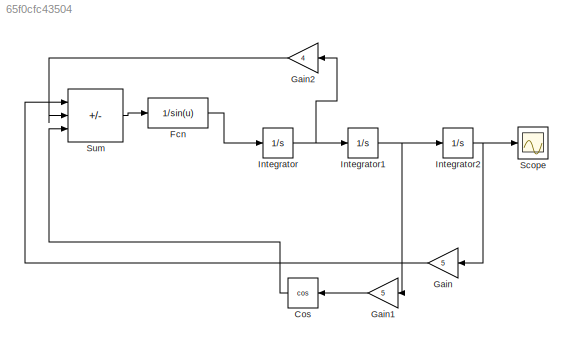
MODEL slx_65f0cfc43504
KIND model
CONFIG AbsTol = auto
CONFIG EnableMultiTasking = off
CONFIG FixedStep = auto
CONFIG MaxStep = auto
CONFIG MinStep = auto
CONFIG RelTol = 1e-3
CONFIG SampleTimeConstraint = Unconstrained
CONFIG SolverName = VariableStepAuto
CONFIG StartTime = 0.0
CONFIG StopTime = 10.0
BLOCK [Trigonometry] Cos
  Operator = cos
BLOCK [Fcn] Fcn
  Expr = 1/sin(u)
BLOCK [Gain] Gain
  Gain = 5
BLOCK [Gain] Gain1
  Gain = 5
BLOCK [Gain] Gain2
  Gain = 4
BLOCK [Integrator] Integrator
BLOCK [Integrator] Integrator1
BLOCK [Integrator] Integrator2
BLOCK [Scope] Scope
  Floating = off
  NumInputPorts = 1
  ScopeSpecificationString = Simulink.scopes.TimeScopeBlockCfg('CurrentConfiguration', extmgr.ConfigurationSet(extmgr.Configuration('Core','General UI',true),extmgr.Configuration('Core','Source UI',true),extmgr.Configuration('Sources','WiredSimulink',true),extmgr.Configuration('Visuals','Time Domain',true,'SerializedDisplays',{struct('MinYLimReal','-25.63271','MaxYLimReal','230.69438','YLabelReal','','MinYLimMag','0.00000','M...<+1430ch>
BLOCK [Sum] Sum
  IconShape = rectangular
  Inputs = |-++
LINE Cos:1 -> Sum:3
LINE Fcn:1 -> Integrator:1
LINE Gain1:1 -> Cos:1
LINE Gain2:1 -> Sum:2
LINE Gain:1 -> Sum:1
NET Integrator1:1 -> Gain1:1, Integrator2:1
NET Integrator2:1 -> Gain:1, Scope:1
NET Integrator:1 -> Gain2:1, Integrator1:1
LINE Sum:1 -> Fcn:1
note: NET lines group one-source signal fan-out (src -> all destinations, sorted); 1:1 wires keep LINE
